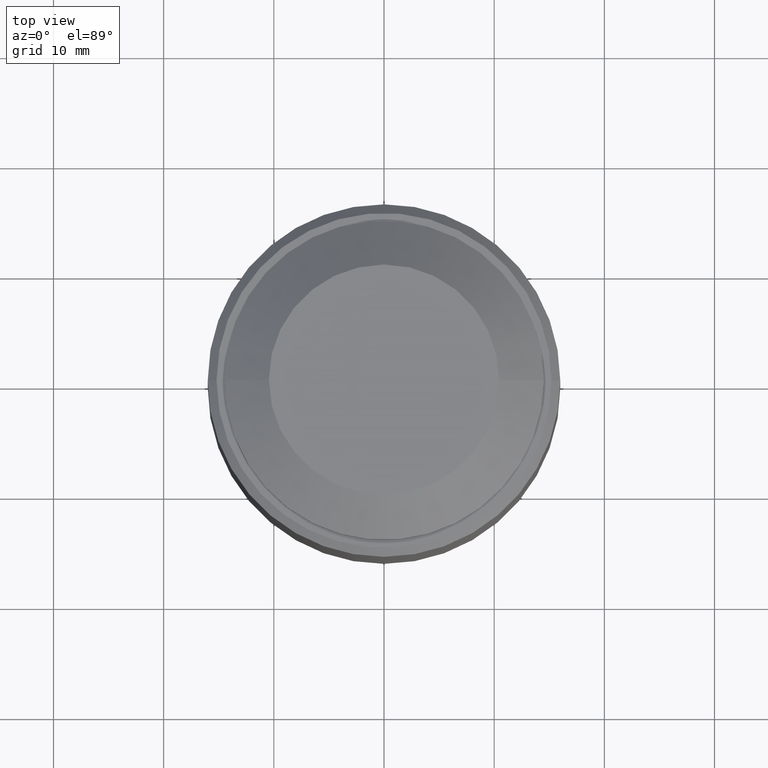
[diagram: clean part render]
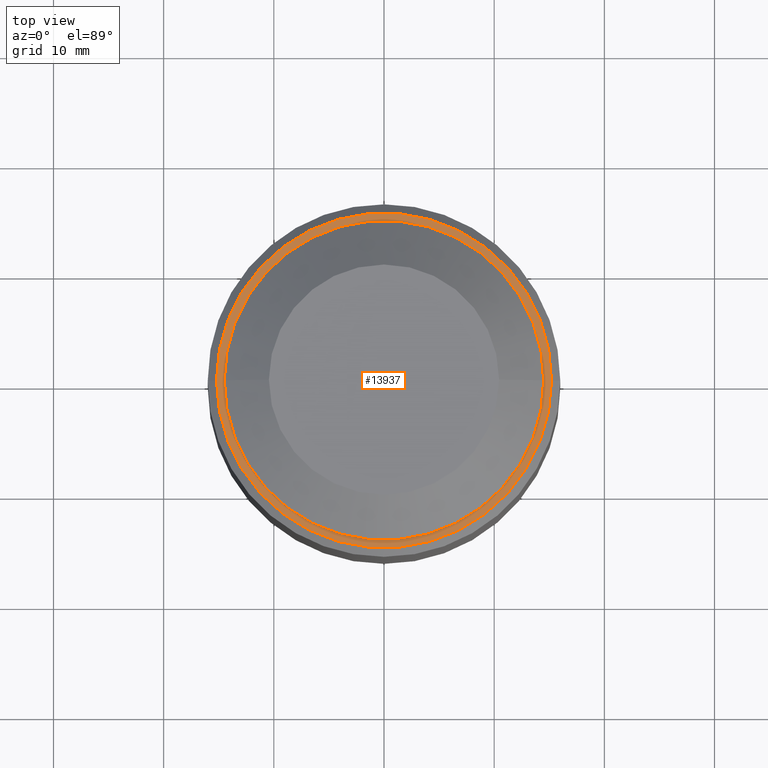
[diagram: same view with one face highlighted and labeled with its STEP entity id]
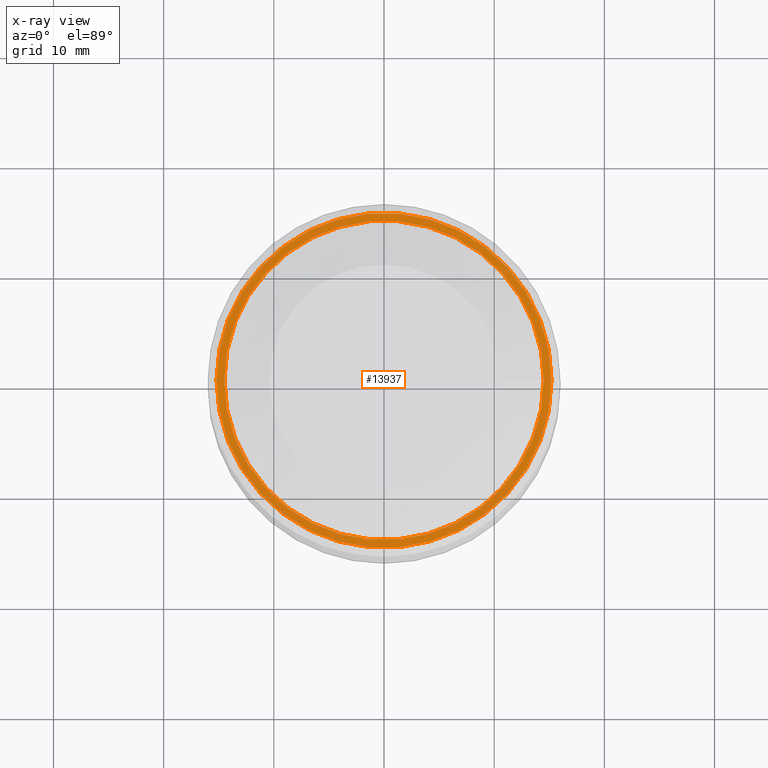
[diagram: x-ray of the same camera — body ghosted, the highlighted face saturated]
A machine part, top view. The second image highlights one B-rep face of the part: STEP entity #13937.
The next image is the same camera in x-ray: the body ghosted, the highlighted face saturated — about 0% of this face is hidden behind the body in this view.
In plain terms, the highlighted planar face has unit normal (0, 0, 1).
Its self-contained STEP definition (entity closure, byte-faithful):
#296 = VERTEX_POINT ( 'NONE', #14723 ) ;
#753 = DIRECTION ( 'NONE',  ( 1.000000000000000000, 0.000000000000000000, 0.000000000000000000 ) ) ;
#1030 = DIRECTION ( 'NONE',  ( 0.000000000000000000, 0.000000000000000000, 1.000000000000000000 ) ) ;
#1319 = FACE_OUTER_BOUND ( 'NONE', #4316, .T. ) ;
#1913 = EDGE_LOOP ( 'NONE', ( #2816, #5116 ) ) ;
#1990 = CARTESIAN_POINT ( 'NONE',  ( 14.50000000000000000, 0.000000000000000000, 44.29999999999999716 ) ) ;
#2066 = CARTESIAN_POINT ( 'NONE',  ( 0.000000000000000000, 0.000000000000000000, 44.29999999999999716 ) ) ;
#2210 = AXIS2_PLACEMENT_3D ( 'NONE', #3478, #1030, #753 ) ;
#2816 = ORIENTED_EDGE ( 'NONE', *, *, #23149, .F. ) ;
#3478 = CARTESIAN_POINT ( 'NONE',  ( 0.000000000000000000, 0.000000000000000000, 44.29999999999999716 ) ) ;
#4316 = EDGE_LOOP ( 'NONE', ( #19669, #22025 ) ) ;
#4851 = DIRECTION ( 'NONE',  ( 1.000000000000000000, 0.000000000000000000, 0.000000000000000000 ) ) ;
#4951 = EDGE_CURVE ( 'NONE', #296, #23026, #13877, .T. ) ;
#5116 = ORIENTED_EDGE ( 'NONE', *, *, #4951, .F. ) ;
#6340 = EDGE_CURVE ( 'NONE', #13335, #12667, #24974, .T. ) ;
#8520 = DIRECTION ( 'NONE',  ( 1.000000000000000000, 0.000000000000000000, 0.000000000000000000 ) ) ;
#8541 = CARTESIAN_POINT ( 'NONE',  ( 15.19999999999999929, 1.910449006669870914E-15, 44.29999999999999716 ) ) ;
#10182 = DIRECTION ( 'NONE',  ( 0.000000000000000000, 0.000000000000000000, 1.000000000000000000 ) ) ;
#10388 = EDGE_CURVE ( 'NONE', #12667, #13335, #16615, .T. ) ;
#11941 = PLANE ( 'NONE',  #2210 ) ;
#12596 = AXIS2_PLACEMENT_3D ( 'NONE', #24509, #17224, #4851 ) ;
#12667 = VERTEX_POINT ( 'NONE', #8541 ) ;
#12717 = DIRECTION ( 'NONE',  ( 0.000000000000000000, 0.000000000000000000, 1.000000000000000000 ) ) ;
#13135 = CARTESIAN_POINT ( 'NONE',  ( 0.000000000000000000, 0.000000000000000000, 44.29999999999999716 ) ) ;
#13335 = VERTEX_POINT ( 'NONE', #14577 ) ;
#13877 = CIRCLE ( 'NONE', #18932, 14.50000000000000000 ) ;
#13937 = ADVANCED_FACE ( 'NONE', ( #22994, #1319 ), #11941, .T. ) ;
#14577 = CARTESIAN_POINT ( 'NONE',  ( -15.19999999999999929, 0.000000000000000000, 44.29999999999999716 ) ) ;
#14723 = CARTESIAN_POINT ( 'NONE',  ( -14.50000000000000000, 1.775737858763662015E-15, 44.29999999999999716 ) ) ;
#16615 = CIRCLE ( 'NONE', #19371, 15.19999999999999929 ) ;
#16933 = DIRECTION ( 'NONE',  ( 1.000000000000000000, 0.000000000000000000, 0.000000000000000000 ) ) ;
#17224 = DIRECTION ( 'NONE',  ( 0.000000000000000000, 0.000000000000000000, 1.000000000000000000 ) ) ;
#17546 = DIRECTION ( 'NONE',  ( 0.000000000000000000, 0.000000000000000000, 1.000000000000000000 ) ) ;
#18932 = AXIS2_PLACEMENT_3D ( 'NONE', #21385, #10182, #16933 ) ;
#19371 = AXIS2_PLACEMENT_3D ( 'NONE', #2066, #17546, #8520 ) ;
#19669 = ORIENTED_EDGE ( 'NONE', *, *, #6340, .T. ) ;
#21385 = CARTESIAN_POINT ( 'NONE',  ( 0.000000000000000000, 0.000000000000000000, 44.29999999999999716 ) ) ;
#22025 = ORIENTED_EDGE ( 'NONE', *, *, #10388, .T. ) ;
#22994 = FACE_BOUND ( 'NONE', #1913, .T. ) ;
#23026 = VERTEX_POINT ( 'NONE', #1990 ) ;
#23149 = EDGE_CURVE ( 'NONE', #23026, #296, #26867, .T. ) ;
#23200 = AXIS2_PLACEMENT_3D ( 'NONE', #13135, #12717, #28357 ) ;
#24509 = CARTESIAN_POINT ( 'NONE',  ( 0.000000000000000000, 0.000000000000000000, 44.29999999999999716 ) ) ;
#24974 = CIRCLE ( 'NONE', #12596, 15.19999999999999929 ) ;
#26867 = CIRCLE ( 'NONE', #23200, 14.50000000000000000 ) ;
#28357 = DIRECTION ( 'NONE',  ( 1.000000000000000000, 0.000000000000000000, 0.000000000000000000 ) ) ;